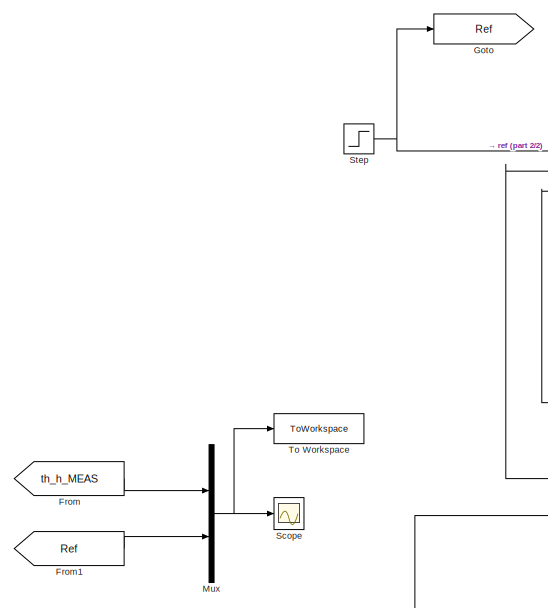
[diagram: root canvas - part 1/2, left side, full height]
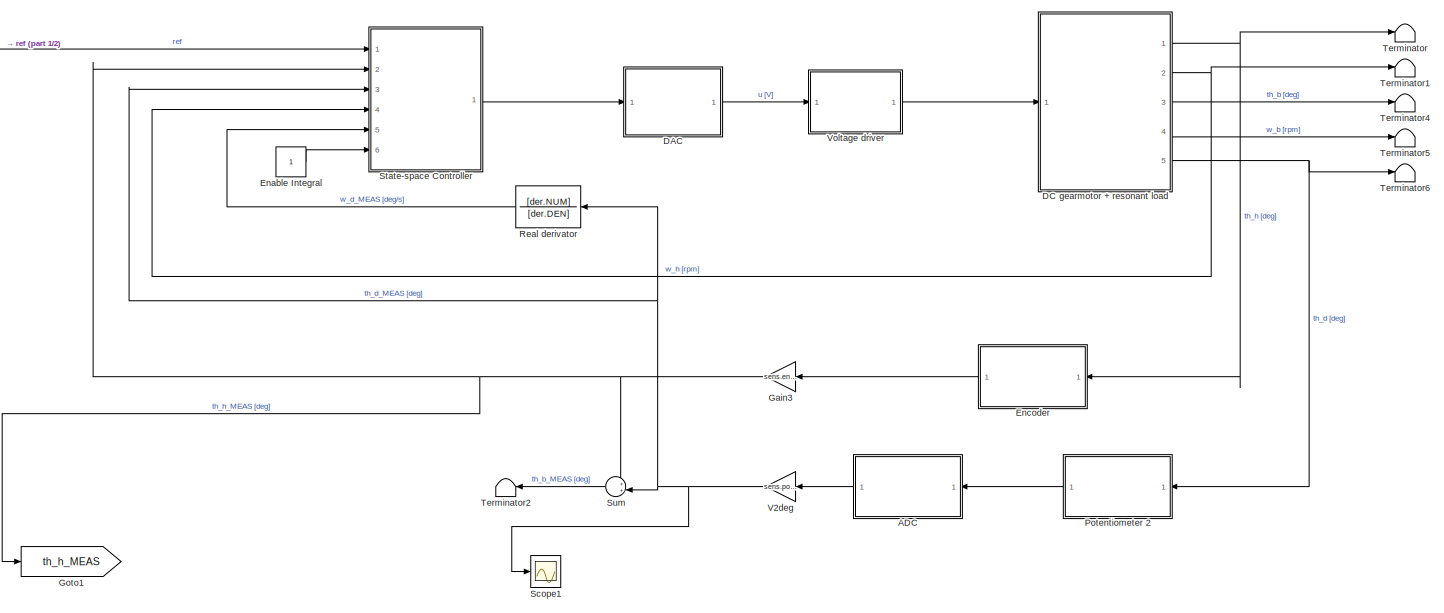
[diagram: root canvas - part 2/2, most of the canvas]
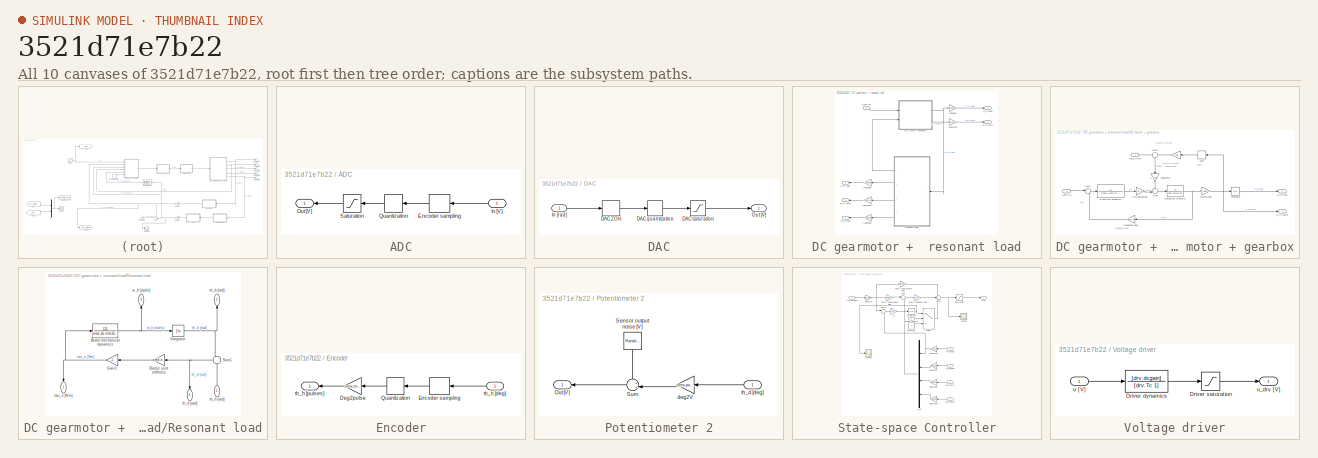
[diagram: thumbnail index - all 10 canvases of the model, root first then tree order]
MODEL slx_3521d71e7b22
KIND model
CONFIG AbsTol = auto
CONFIG EnableMultiTasking = off
CONFIG FixedStep = auto
CONFIG MaxStep = auto
CONFIG MinStep = auto
CONFIG RelTol = 1e-3
CONFIG SampleTimeConstraint = Unconstrained
CONFIG SolverName = ode45
CONFIG StartTime = 0.0
CONFIG StopTime = 3
BLOCK [SubSystem] ADC
  NameLocation = top
  Ports = [1, 1]
  RequestExecContextInheritance = off
BLOCK [ZeroOrderHold] ADC/Encoder sampling
  NameLocation = top
  SampleTime = sens.enc.T_s
BLOCK [Inport] ADC/In [V]
  NameLocation = top
BLOCK [Outport] ADC/Out [V]
  NameLocation = top
BLOCK [Quantizer] ADC/Quantization
  NameLocation = top
  QuantizationInterval = daq.adc.q
BLOCK [Saturate] ADC/Saturation
  LowerLimit = -daq.adc.fs
  NameLocation = top
  UpperLimit = daq.adc.fs
BLOCK [SubSystem] DAC
  Ports = [1, 1]
  RequestExecContextInheritance = off
BLOCK [ZeroOrderHold] DAC/DAC ZOH
  SampleTime = sens.enc.T_s
BLOCK [Quantizer] DAC/DAC quantization
  QuantizationInterval = daq.dac.q
BLOCK [Saturate] DAC/DAC saturation
  LowerLimit = daq.dac.vss
  UpperLimit = daq.dac.vdd
BLOCK [Inport] DAC/In [rad]
BLOCK [Outport] DAC/Out [V]
BLOCK [SubSystem] DC gearmotor +  resonant load
  Ports = [1, 5]
  RequestExecContextInheritance = off
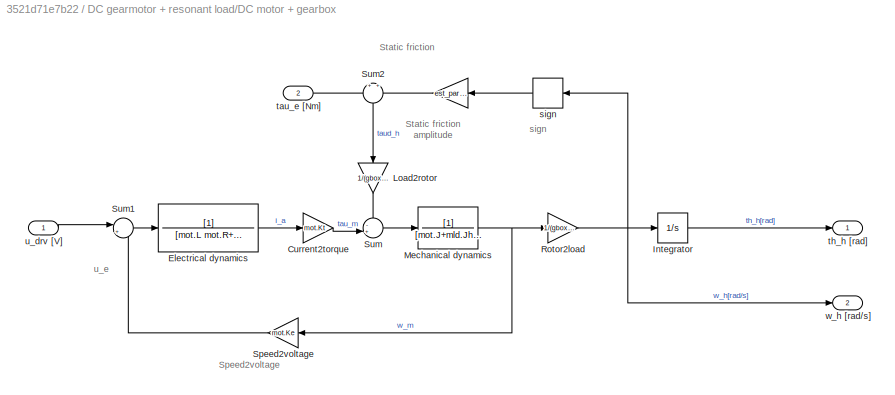
BLOCK [SubSystem] DC gearmotor +  resonant load/DC motor + gearbox
  Ports = [2, 2]
  RequestExecContextInheritance = off
BLOCK [Gain] DC gearmotor +  resonant load/DC motor + gearbox/ 
  Gain = est_par.tau_sf
  NameLocation = top
BLOCK [Gain] DC gearmotor +  resonant load/DC motor + gearbox/Current2torque
  Gain = mot.Kt
BLOCK [TransferFcn] DC gearmotor +  resonant load/DC motor + gearbox/Electrical dynamics
  Denominator = [mot.L mot.R+sens.curr.Rs]
BLOCK [Integrator] DC gearmotor +  resonant load/DC motor + gearbox/Integrator
  Ports = [1, 1]
BLOCK [Gain] DC gearmotor +  resonant load/DC motor + gearbox/Load2rotor
  Gain = 1/(gbox.N)
  NameLocation = left
BLOCK [TransferFcn] DC gearmotor +  resonant load/DC motor + gearbox/Mechanical dynamics
  Denominator = [mot.J+mld.Jh/(gbox.N)^2 est_par.B_eq]
BLOCK [Gain] DC gearmotor +  resonant load/DC motor + gearbox/Rotor2load
  Gain = 1/(gbox.N)
BLOCK [Gain] DC gearmotor +  resonant load/DC motor + gearbox/Speed2voltage
  Gain = mot.Ke
  NameLocation = top
BLOCK [Sum] DC gearmotor +  resonant load/DC motor + gearbox/Sum
  Inputs = -+|
  Ports = [2, 1]
BLOCK [Sum] DC gearmotor +  resonant load/DC motor + gearbox/Sum1
  Inputs = |+-
  Ports = [2, 1]
BLOCK [Sum] DC gearmotor +  resonant load/DC motor + gearbox/Sum2
  Inputs = +|+
  NameLocation = left
  Ports = [2, 1]
BLOCK [Signum] DC gearmotor +  resonant load/DC motor + gearbox/sign
  NameLocation = top
  ZeroCross = off
BLOCK [Inport] DC gearmotor +  resonant load/DC motor + gearbox/tau_e [Nm]
  Port = 2
BLOCK [Outport] DC gearmotor +  resonant load/DC motor + gearbox/th_h [rad]
BLOCK [Inport] DC gearmotor +  resonant load/DC motor + gearbox/u_drv [V]
BLOCK [Outport] DC gearmotor +  resonant load/DC motor + gearbox/w_h [rad//s]
  Port = 2
BLOCK [SubSystem] DC gearmotor +  resonant load/Resonant load
  NameLocation = top
  Ports = [1, 4]
  RequestExecContextInheritance = off
BLOCK [TransferFcn] DC gearmotor +  resonant load/Resonant load/Beam mechanical dynamics
  Denominator = [mld.Jb mld.Bb]
BLOCK [Gain] DC gearmotor +  resonant load/Resonant load/Elastic joint stiffness
  Gain = mld.k
  NameLocation = top
BLOCK [Gain] DC gearmotor +  resonant load/Resonant load/Gain1
  Gain = -1
  NameLocation = top
BLOCK [Integrator] DC gearmotor +  resonant load/Resonant load/Integrator
  Ports = [1, 1]
BLOCK [Sum] DC gearmotor +  resonant load/Resonant load/Sum1
  Inputs = +|-
  NameLocation = top
  Ports = [2, 1]
BLOCK [Outport] DC gearmotor +  resonant load/Resonant load/tau_e [Nm]
  NameLocation = left
BLOCK [Outport] DC gearmotor +  resonant load/Resonant load/th_b [rad]
  NameLocation = right
  Port = 2
BLOCK [Outport] DC gearmotor +  resonant load/Resonant load/th_d [rad]
  NameLocation = left
  Port = 4
BLOCK [Inport] DC gearmotor +  resonant load/Resonant load/th_h [rad]
  NameLocation = right
BLOCK [Outport] DC gearmotor +  resonant load/Resonant load/w_b [rad//s]
  NameLocation = right
  Port = 3
BLOCK [Gain] DC gearmotor +  resonant load/rad2deg
  Gain = rad2deg
BLOCK [Gain] DC gearmotor +  resonant load/rad2deg1
  Gain = rad2deg
  NameLocation = top
BLOCK [Gain] DC gearmotor +  resonant load/rad2deg2
  Gain = rad2deg
  NameLocation = top
BLOCK [Gain] DC gearmotor +  resonant load/rads2rpm
  Gain = rads2rpm
BLOCK [Gain] DC gearmotor +  resonant load/rads2rpm1
  Gain = rads2rpm
  NameLocation = top
BLOCK [Outport] DC gearmotor +  resonant load/th_b [deg]
  NameLocation = top
  Port = 3
BLOCK [Outport] DC gearmotor +  resonant load/th_d [deg]
  NameLocation = top
  Port = 5
BLOCK [Outport] DC gearmotor +  resonant load/th_h [deg]
BLOCK [Inport] DC gearmotor +  resonant load/u_drv [V]
BLOCK [Outport] DC gearmotor +  resonant load/w_b [rpm]
  NameLocation = top
  Port = 4
BLOCK [Outport] DC gearmotor +  resonant load/w_h [rpm]
  Port = 2
BLOCK [Constant] Enable Integral
BLOCK [SubSystem] Encoder
  NameLocation = top
  Ports = [1, 1]
  RequestExecContextInheritance = off
BLOCK [Gain] Encoder/Deg2pulse
  Gain = sens.enc.deg2pulse
  NameLocation = top
BLOCK [ZeroOrderHold] Encoder/Encoder sampling
  NameLocation = top
  SampleTime = sens.enc.T_s
BLOCK [Quantizer] Encoder/Quantization
  NameLocation = top
  QuantizationInterval = sens.enc.q
BLOCK [Inport] Encoder/th_h [deg]
  NameLocation = top
BLOCK [Outport] Encoder/th_h [pulses]
  NameLocation = top
BLOCK [From] From
  GotoTag = th_h_MEAS
BLOCK [From] From1
  GotoTag = Ref
BLOCK [Gain] Gain3
  Gain = sens.enc.pulse2deg
  NameLocation = top
BLOCK [Goto] Goto
  GotoTag = Ref
BLOCK [Goto] Goto1
  GotoTag = th_h_MEAS
BLOCK [Mux] Mux
  DisplayOption = bar
  Inputs = 2
  Ports = [2, 1]
BLOCK [SubSystem] Potentiometer 2
  NameLocation = top
  Ports = [1, 1]
  RequestExecContextInheritance = off
BLOCK [Outport] Potentiometer 2/Out [V]
  NameLocation = top
BLOCK [RandomNumber] Potentiometer 2/Sensor output noise [V]
  NameLocation = left
  SampleTime = 0.1
  Variance = sens.pot2.noise.var
BLOCK [Sum] Potentiometer 2/Sum
  Inputs = ++|
  NameLocation = top
  Ports = [2, 1]
BLOCK [Gain] Potentiometer 2/deg2V
  Gain = sens.pot2.deg2V
  NameLocation = top
BLOCK [Inport] Potentiometer 2/th_d [deg]
  NameLocation = top
BLOCK [TransferFcn] Real derivator
  Denominator = [der.DEN]
  NameLocation = top
  Numerator = [der.NUM]
BLOCK [Scope] Scope
  Floating = off
  NumInputPorts = 1
  Ports = [1]
  ScopeSpecificationString = Simulink.scopes.TimeScopeBlockCfg('CurrentConfiguration', extmgr.ConfigurationSet(extmgr.Configuration('Core','General UI',true),extmgr.Configuration('Core','Source UI',true),extmgr.Configuration('Sources','WiredSimulink',true),extmgr.Configuration('Visuals','Time Domain',true,'SerializedDisplays',{struct('MinYLimReal','-7.91016','MaxYLimReal','71.19141','YLabelReal','','MinYLimMag','0.00000','Max...<+1398ch>
BLOCK [Scope] Scope1
  Floating = off
  NumInputPorts = 1
  Ports = [1]
  ScopeSpecificationString = Simulink.scopes.TimeScopeBlockCfg('CurrentConfiguration', extmgr.ConfigurationSet(extmgr.Configuration('Core','General UI',true),extmgr.Configuration('Core','Source UI',true),extmgr.Configuration('Sources','WiredSimulink',true,'DataLoggingVariableName','ScopeData2'),extmgr.Configuration('Visuals','Time Domain',true,'SerializedDisplays',{struct('MinYLimReal','-11.82879','MaxYLimReal','4.35798','YLa...<+1378ch>
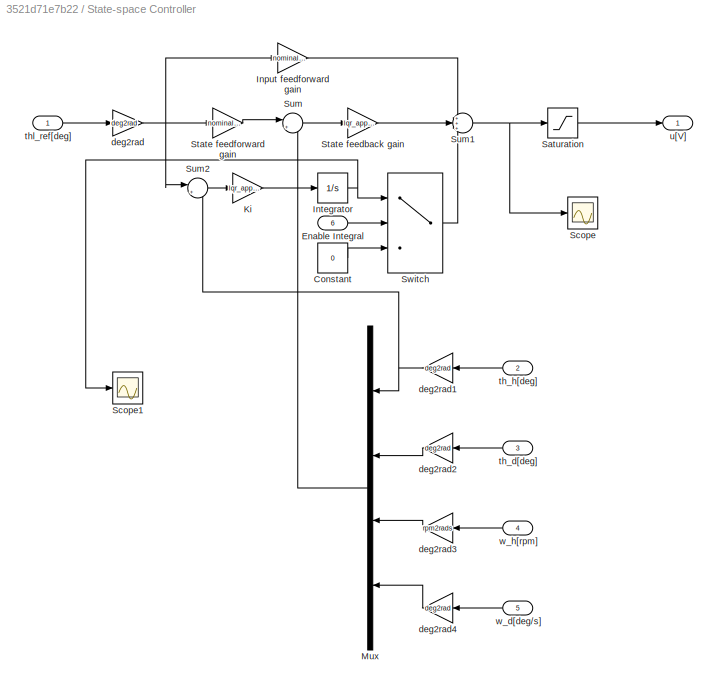
BLOCK [SubSystem] State-space Controller
  Ports = [6, 1]
  RequestExecContextInheritance = off
BLOCK [Constant] State-space Controller/Constant
  Value = 0
BLOCK [Inport] State-space Controller/Enable Integral
  Port = 6
BLOCK [Gain] State-space Controller/Input feedforward gain
  Gain = nominal.N_u
BLOCK [Integrator] State-space Controller/Integrator
  Ports = [1, 1]
BLOCK [Gain] State-space Controller/Ki
  Gain = lqr_app_int.K5i
BLOCK [Mux] State-space Controller/Mux
  DisplayOption = bar
  NameLocation = top
  Ports = [4, 1]
BLOCK [Saturate] State-space Controller/Saturation
  LowerLimit = -10
  UpperLimit = 10
BLOCK [Scope] State-space Controller/Scope
  Floating = off
  NumInputPorts = 1
  Ports = [1]
  ScopeSpecificationString = Simulink.scopes.TimeScopeBlockCfg('CurrentConfiguration', extmgr.ConfigurationSet(extmgr.Configuration('Core','General UI',true),extmgr.Configuration('Core','Source UI',true),extmgr.Configuration('Sources','WiredSimulink',true,'DataLoggingVariableName','ScopeData1'),extmgr.Configuration('Visuals','Time Domain',true,'SerializedDisplays',{struct('MinYLimReal','-8.80615','MaxYLimReal','48.37498','YLa...<+1367ch>
BLOCK [Scope] State-space Controller/Scope1
  Floating = off
  NumInputPorts = 1
  Ports = [1]
  ScopeSpecificationString = Simulink.scopes.TimeScopeBlockCfg('CurrentConfiguration', extmgr.ConfigurationSet(extmgr.Configuration('Core','General UI',true),extmgr.Configuration('Core','Source UI',true),extmgr.Configuration('Sources','WiredSimulink',true,'DataLoggingVariableName','ScopeData1'),extmgr.Configuration('Visuals','Time Domain',true,'SerializedDisplays',{struct('MinYLimReal','-0.01406','MaxYLimReal','0.12655','YLab...<+1369ch>
BLOCK [Gain] State-space Controller/State feedback gain
  Gain = lqr_app_int.K5
  Multiplication = Matrix(K*u)
BLOCK [Gain] State-space Controller/State feedforward gain
  Gain = nominal.N_x
BLOCK [Sum] State-space Controller/Sum
  Inputs = |+-
  Ports = [2, 1]
BLOCK [Sum] State-space Controller/Sum1
  Inputs = +++
  Ports = [3, 1]
BLOCK [Sum] State-space Controller/Sum2
  Inputs = |+-
  Ports = [2, 1]
BLOCK [Switch] State-space Controller/Switch
  Criteria = u2 > Threshold
  InputSameDT = off
  SaturateOnIntegerOverflow = off
BLOCK [Gain] State-space Controller/deg2rad
  Gain = deg2rad
BLOCK [Gain] State-space Controller/deg2rad1
  Gain = deg2rad
  NameLocation = top
BLOCK [Gain] State-space Controller/deg2rad2
  Gain = deg2rad
  NameLocation = top
BLOCK [Gain] State-space Controller/deg2rad3
  Gain = rpm2rads
  NameLocation = top
BLOCK [Gain] State-space Controller/deg2rad4
  Gain = deg2rad
  NameLocation = top
BLOCK [Inport] State-space Controller/th_d[deg]
  NameLocation = top
  Port = 3
BLOCK [Inport] State-space Controller/th_h[deg]
  NameLocation = top
  Port = 2
BLOCK [Inport] State-space Controller/thl_ref[deg]
BLOCK [Outport] State-space Controller/u[V]
BLOCK [Inport] State-space Controller/w_d[deg//s]
  NameLocation = top
  Port = 5
BLOCK [Inport] State-space Controller/w_h[rpm]
  NameLocation = top
  Port = 4
BLOCK [Step] Step
  After = 50
  SampleTime = 0
  Time = 0
BLOCK [Sum] Sum
  Inputs = ++|
  NameLocation = top
  Ports = [2, 1]
BLOCK [Terminator] Terminator
BLOCK [Terminator] Terminator1
BLOCK [Terminator] Terminator2
  NameLocation = top
BLOCK [Terminator] Terminator4
BLOCK [Terminator] Terminator5
BLOCK [Terminator] Terminator6
BLOCK [ToWorkspace] To Workspace
  FixptAsFi = on
  MaxDataPoints = inf
  Ports = [1]
  SampleTime = -1
  SaveFormat = Structure With Time
  VariableName = simres
BLOCK [Gain] V2deg
  Gain = sens.pot2.V2deg
  NameLocation = top
BLOCK [SubSystem] Voltage driver
  Ports = [1, 1]
  RequestExecContextInheritance = off
BLOCK [TransferFcn] Voltage driver/Driver dynamics
  Denominator = [drv.Tc 1]
  Numerator = [drv.dcgain]
BLOCK [Saturate] Voltage driver/Driver saturation
  LowerLimit = -drv.outmax
  UpperLimit = drv.outmax
BLOCK [Inport] Voltage driver/u [V]
BLOCK [Outport] Voltage driver/u_drv [V]
ANNOTATION DC gearmotor +  resonant load/DC motor + gearbox: Static friction
ANNOTATION DC gearmotor +  resonant load/DC motor + gearbox: Speed2voltage
ANNOTATION DC gearmotor +  resonant load/DC motor + gearbox: Static friction amplitude
ANNOTATION DC gearmotor +  resonant load/DC motor + gearbox: sign
ANNOTATION DC gearmotor +  resonant load/DC motor + gearbox: u_e
LINE ADC/Encoder sampling:1 -> ADC/Quantization:1
LINE ADC/In [V]:1 -> ADC/Encoder sampling:1
LINE ADC/Quantization:1 -> ADC/Saturation:1
LINE ADC/Saturation:1 -> ADC/Out [V]:1
LINE ADC:1 -> V2deg:1
LINE DAC/DAC ZOH:1 -> DAC/DAC quantization:1
LINE DAC/DAC quantization:1 -> DAC/DAC saturation:1
LINE DAC/DAC saturation:1 -> DAC/Out [V]:1
LINE DAC/In [rad]:1 -> DAC/DAC ZOH:1
LINE DAC:1 -> Voltage driver:1
LINE DC gearmotor +  resonant load/DC motor + gearbox/ :1 -> DC gearmotor +  resonant load/DC motor + gearbox/Sum2:2
LINE DC gearmotor +  resonant load/DC motor + gearbox/Current2torque:1 -> DC gearmotor +  resonant load/DC motor + gearbox/Sum:2
LINE DC gearmotor +  resonant load/DC motor + gearbox/Electrical dynamics:1 -> DC gearmotor +  resonant load/DC motor + gearbox/Current2torque:1
LINE DC gearmotor +  resonant load/DC motor + gearbox/Integrator:1 -> DC gearmotor +  resonant load/DC motor + gearbox/th_h [rad]:1
LINE DC gearmotor +  resonant load/DC motor + gearbox/Load2rotor:1 -> DC gearmotor +  resonant load/DC motor + gearbox/Sum:1
NET DC gearmotor +  resonant load/DC motor + gearbox/Mechanical dynamics:1 -> DC gearmotor +  resonant load/DC motor + gearbox/Rotor2load:1, DC gearmotor +  resonant load/DC motor + gearbox/Speed2voltage:1
NET DC gearmotor +  resonant load/DC motor + gearbox/Rotor2load:1 -> DC gearmotor +  resonant load/DC motor + gearbox/Integrator:1, DC gearmotor +  resonant load/DC motor + gearbox/sign:1, DC gearmotor +  resonant load/DC motor + gearbox/w_h [rad//s]:1
LINE DC gearmotor +  resonant load/DC motor + gearbox/Speed2voltage:1 -> DC gearmotor +  resonant load/DC motor + gearbox/Sum1:2
LINE DC gearmotor +  resonant load/DC motor + gearbox/Sum1:1 -> DC gearmotor +  resonant load/DC motor + gearbox/Electrical dynamics:1
LINE DC gearmotor +  resonant load/DC motor + gearbox/Sum2:1 -> DC gearmotor +  resonant load/DC motor + gearbox/Load2rotor:1
LINE DC gearmotor +  resonant load/DC motor + gearbox/Sum:1 -> DC gearmotor +  resonant load/DC motor + gearbox/Mechanical dynamics:1
LINE DC gearmotor +  resonant load/DC motor + gearbox/sign:1 -> DC gearmotor +  resonant load/DC motor + gearbox/ :1
LINE DC gearmotor +  resonant load/DC motor + gearbox/tau_e [Nm]:1 -> DC gearmotor +  resonant load/DC motor + gearbox/Sum2:1
LINE DC gearmotor +  resonant load/DC motor + gearbox/u_drv [V]:1 -> DC gearmotor +  resonant load/DC motor + gearbox/Sum1:1
NET DC gearmotor +  resonant load/DC motor + gearbox:1 -> DC gearmotor +  resonant load/Resonant load:1, DC gearmotor +  resonant load/rad2deg:1
LINE DC gearmotor +  resonant load/DC motor + gearbox:2 -> DC gearmotor +  resonant load/rads2rpm:1
NET DC gearmotor +  resonant load/Resonant load/Beam mechanical dynamics:1 -> DC gearmotor +  resonant load/Resonant load/Integrator:1, DC gearmotor +  resonant load/Resonant load/w_b [rad//s]:1
LINE DC gearmotor +  resonant load/Resonant load/Elastic joint stiffness:1 -> DC gearmotor +  resonant load/Resonant load/Gain1:1
NET DC gearmotor +  resonant load/Resonant load/Gain1:1 -> DC gearmotor +  resonant load/Resonant load/Beam mechanical dynamics:1, DC gearmotor +  resonant load/Resonant load/tau_e [Nm]:1
NET DC gearmotor +  resonant load/Resonant load/Integrator:1 -> DC gearmotor +  resonant load/Resonant load/Sum1:1, DC gearmotor +  resonant load/Resonant load/th_b [rad]:1
NET DC gearmotor +  resonant load/Resonant load/Sum1:1 -> DC gearmotor +  resonant load/Resonant load/Elastic joint stiffness:1, DC gearmotor +  resonant load/Resonant load/th_d [rad]:1
LINE DC gearmotor +  resonant load/Resonant load/th_h [rad]:1 -> DC gearmotor +  resonant load/Resonant load/Sum1:2
LINE DC gearmotor +  resonant load/Resonant load:1 -> DC gearmotor +  resonant load/DC motor + gearbox:2
LINE DC gearmotor +  resonant load/Resonant load:2 -> DC gearmotor +  resonant load/rad2deg1:1
LINE DC gearmotor +  resonant load/Resonant load:3 -> DC gearmotor +  resonant load/rads2rpm1:1
LINE DC gearmotor +  resonant load/Resonant load:4 -> DC gearmotor +  resonant load/rad2deg2:1
LINE DC gearmotor +  resonant load/rad2deg1:1 -> DC gearmotor +  resonant load/th_b [deg]:1
LINE DC gearmotor +  resonant load/rad2deg2:1 -> DC gearmotor +  resonant load/th_d [deg]:1
LINE DC gearmotor +  resonant load/rad2deg:1 -> DC gearmotor +  resonant load/th_h [deg]:1
LINE DC gearmotor +  resonant load/rads2rpm1:1 -> DC gearmotor +  resonant load/w_b [rpm]:1
LINE DC gearmotor +  resonant load/rads2rpm:1 -> DC gearmotor +  resonant load/w_h [rpm]:1
LINE DC gearmotor +  resonant load/u_drv [V]:1 -> DC gearmotor +  resonant load/DC motor + gearbox:1
NET DC gearmotor +  resonant load:1 -> Encoder:1, Terminator:1
NET DC gearmotor +  resonant load:2 -> State-space Controller:4, Terminator1:1
LINE DC gearmotor +  resonant load:3 -> Terminator4:1
LINE DC gearmotor +  resonant load:4 -> Terminator5:1
NET DC gearmotor +  resonant load:5 -> Potentiometer 2:1, Terminator6:1
LINE Enable Integral:1 -> State-space Controller:6
LINE Encoder/Deg2pulse:1 -> Encoder/th_h [pulses]:1
LINE Encoder/Encoder sampling:1 -> Encoder/Quantization:1
LINE Encoder/Quantization:1 -> Encoder/Deg2pulse:1
LINE Encoder/th_h [deg]:1 -> Encoder/Encoder sampling:1
LINE Encoder:1 -> Gain3:1
LINE From1:1 -> Mux:2
LINE From:1 -> Mux:1
NET Gain3:1 -> Goto1:1, State-space Controller:2, Sum:1
NET Mux:1 -> Scope:1, To Workspace:1
LINE Potentiometer 2/Sensor output noise [V]:1 -> Potentiometer 2/Sum:1
LINE Potentiometer 2/Sum:1 -> Potentiometer 2/Out [V]:1
LINE Potentiometer 2/deg2V:1 -> Potentiometer 2/Sum:2
LINE Potentiometer 2/th_d [deg]:1 -> Potentiometer 2/deg2V:1
LINE Potentiometer 2:1 -> ADC:1
LINE Real derivator:1 -> State-space Controller:5
LINE State-space Controller/Constant:1 -> State-space Controller/Switch:3
LINE State-space Controller/Enable Integral:1 -> State-space Controller/Switch:2
LINE State-space Controller/Input feedforward gain:1 -> State-space Controller/Sum1:1
NET State-space Controller/Integrator:1 -> State-space Controller/Scope1:1, State-space Controller/Switch:1
LINE State-space Controller/Ki:1 -> State-space Controller/Integrator:1
LINE State-space Controller/Mux:1 -> State-space Controller/Sum:2
LINE State-space Controller/Saturation:1 -> State-space Controller/u[V]:1
LINE State-space Controller/State feedback gain:1 -> State-space Controller/Sum1:2
LINE State-space Controller/State feedforward gain:1 -> State-space Controller/Sum:1
NET State-space Controller/Sum1:1 -> State-space Controller/Saturation:1, State-space Controller/Scope:1
LINE State-space Controller/Sum2:1 -> State-space Controller/Ki:1
LINE State-space Controller/Sum:1 -> State-space Controller/State feedback gain:1
LINE State-space Controller/Switch:1 -> State-space Controller/Sum1:3
NET State-space Controller/deg2rad1:1 -> State-space Controller/Mux:1, State-space Controller/Sum2:2
LINE State-space Controller/deg2rad2:1 -> State-space Controller/Mux:2
LINE State-space Controller/deg2rad3:1 -> State-space Controller/Mux:3
LINE State-space Controller/deg2rad4:1 -> State-space Controller/Mux:4
NET State-space Controller/deg2rad:1 -> State-space Controller/Input feedforward gain:1, State-space Controller/State feedforward gain:1, State-space Controller/Sum2:1
LINE State-space Controller/th_d[deg]:1 -> State-space Controller/deg2rad2:1
LINE State-space Controller/th_h[deg]:1 -> State-space Controller/deg2rad1:1
LINE State-space Controller/thl_ref[deg]:1 -> State-space Controller/deg2rad:1
LINE State-space Controller/w_d[deg//s]:1 -> State-space Controller/deg2rad4:1
LINE State-space Controller/w_h[rpm]:1 -> State-space Controller/deg2rad3:1
LINE State-space Controller:1 -> DAC:1
NET Step:1 -> Goto:1, State-space Controller:1
LINE Sum:1 -> Terminator2:1
NET V2deg:1 -> Real derivator:1, Scope1:1, State-space Controller:3, Sum:2
LINE Voltage driver/Driver dynamics:1 -> Voltage driver/Driver saturation:1
LINE Voltage driver/Driver saturation:1 -> Voltage driver/u_drv [V]:1
LINE Voltage driver/u [V]:1 -> Voltage driver/Driver dynamics:1
LINE Voltage driver:1 -> DC gearmotor +  resonant load:1
note: NET lines group one-source signal fan-out (src -> all destinations, sorted); 1:1 wires keep LINE
